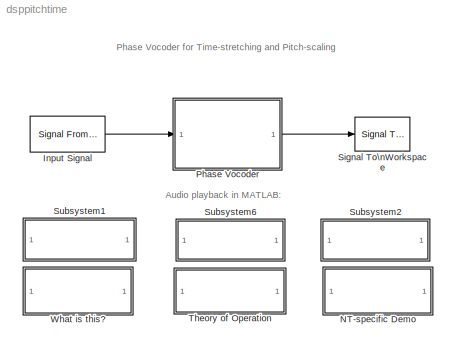
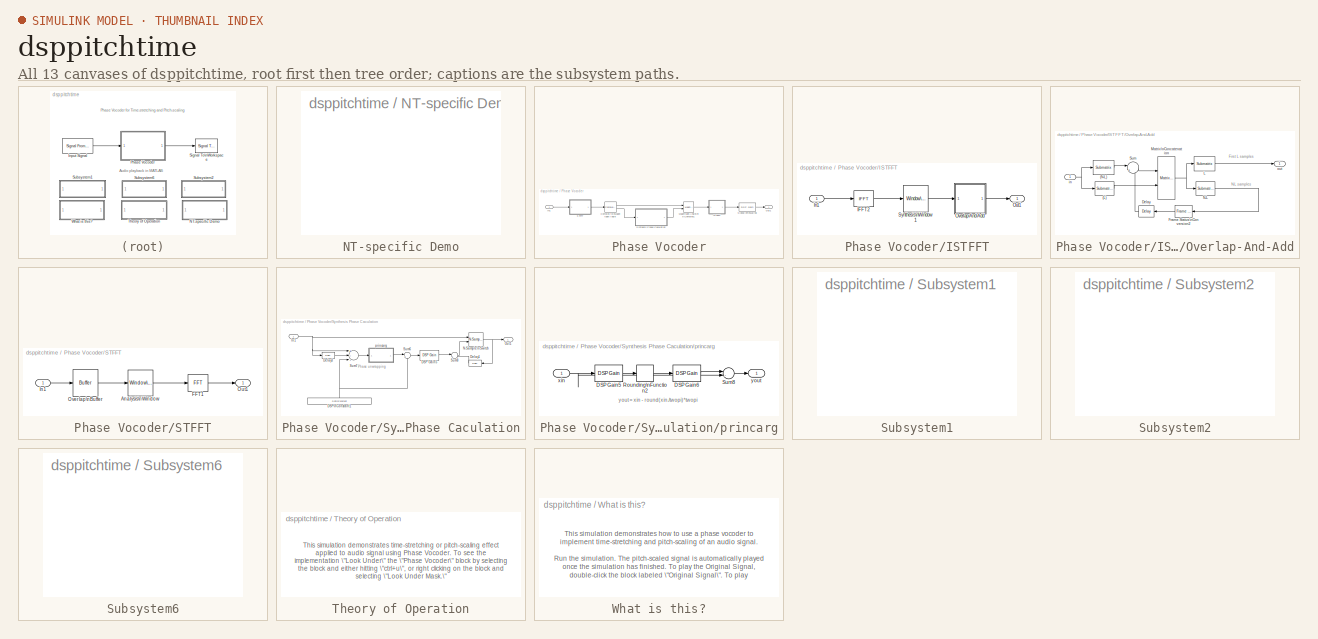
[diagram: thumbnail index - all 13 canvases of the model, root first then tree order]
MODEL dsppitchtime
KIND model
CONFIG PreLoadFcn = load clean_speech.mat;
BLOCK [Reference] Input Signal  REF=dspsrcs4/Signal From\nWorkspace
  OutputAfterFinalValue = Setting to zero
  Ports = [0, 1]
  ShowPortLabels = on
  SourceBlock = dspsrcs4/Signal From\nWorkspace
  SourceType = Signal From Workspace
  Ts = 1/8000
  X = Speech
  nsamps = 64
BLOCK [SubSystem] NT-specific Demo
  MaskDisplay = disp('PC/Windows\\nDemo')
  MaskIconFrame = on
  MaskIconOpaque = on
  MaskIconRotate = none
  MaskIconUnits = autoscale
  MaskType = NT-only Demo
  MinAlgLoopOccurrences = off
  OpenFcn = dsppitchtime_win32
  Ports = []
  PropExecContextAcrossSSBoundary = on
  RTWSystemCode = Auto
  TreatAsAtomicUnit = off
BLOCK [SubSystem] Phase Vocoder
  MaskCallbackString = ||
  MaskDescription = Algorithm for time-stretching and pitch-scaling of an audio signal. Time-stretching changes the speed of an audio signal without affecting its pitch. Pitch-scaling changes the pitch of an audio signal without affecting its speed. \n\nThe pitch-scaling and time-stretching factors are defined by the ratio of the Synthesis hop-size parameter to the Analysis hop-size parameter. \n\nThe Window size par...<+204ch>
  MaskDisplay = disp('Phase Vocoder')
  MaskEnableString = on,on,on
  MaskIconFrame = on
  MaskIconOpaque = on
  MaskIconRotate = none
  MaskIconUnits = autoscale
  MaskPromptString = Analysis hop-size (i.e., temporal shift of analysis window) (in samples):|Window size (in samples):|Synthesis hop-size (i.e., temporal shift of synthesis window) (in samples):
  MaskStyleString = edit,edit,edit
  MaskTabNameString = ,,
  MaskToolTipString = on,on,on
  MaskTunableValueString = off,off,off
  MaskType = Phase Vocoder
  MaskValueString = 64|256|90
  MaskVarAliasString = ,,
  MaskVariables = ana_hopSize=@1;winLen=@2;syn_hopSize=@3;
  MaskVisibilityString = on,on,on
  MinAlgLoopOccurrences = off
  Ports = [1, 1]
  PropExecContextAcrossSSBoundary = on
  RTWSystemCode = Auto
  TreatAsAtomicUnit = off
BLOCK [ComplexToMagnitudeAngle] Phase Vocoder/Complex to\nMagnitude-Angle
  Output = Magnitude and angle
  Ports = [1, 2]
BLOCK [SubSystem] Phase Vocoder/ISTFFT
  MaskDisplay = disp('Overlap\\nIST-FFT')
  MaskIconFrame = on
  MaskIconOpaque = on
  MaskIconRotate = none
  MaskIconUnits = autoscale
  MinAlgLoopOccurrences = off
  Ports = [1, 1]
  PropExecContextAcrossSSBoundary = on
  RTWSystemCode = Auto
  TreatAsAtomicUnit = off
BLOCK [Reference] Phase Vocoder/ISTFFT/IFFT2  REF=dspxfrm3/IFFT
  BitRevOrder = off
  CompMethod = Table lookup
  DialogController = dspDDGCreate
  DialogControllerArgs = DataTag0
  Ports = [1, 1]
  SkipNorm = on
  SourceBlock = dspxfrm3/IFFT
  SourceType = IFFT
  TableOpt = Speed
  accumFracLength = 30
  accumMode = Same as product output
  accumWordLength = 32
  additionalParams = off
  allowOverrides = on
  cs_in = on
  firstCoeffFracLength = 15
  firstCoeffMode = User-defined
  firstCoeffWordLength = 16
  mode = Complex
  outputFracLength = 15
  outputMode = Same as input
  outputWordLength = 16
  overflowMode = off
  prodOutputFracLength = 30
  prodOutputMode = Same as input
  prodOutputWordLength = 32
  roundingMode = Floor
BLOCK [Inport] Phase Vocoder/ISTFFT/In1
  IconDisplay = Port number
  LatchInput = off
BLOCK [Outport] Phase Vocoder/ISTFFT/Out1
  BusOutputAsStruct = off
  IconDisplay = Port number
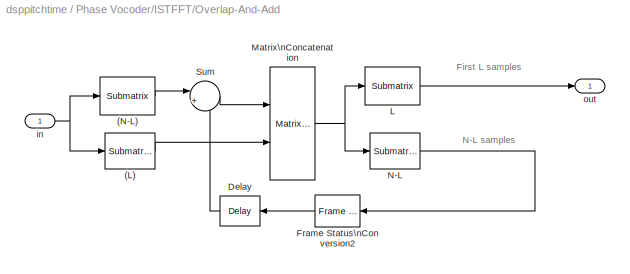
BLOCK [SubSystem] Phase Vocoder/ISTFFT/Overlap-And-Add
  MaskDescription = Performs overlap-and-add on the input signal. Disjoint frames of the input signal are overlapped with each other for a specified number of points and summed. \n
  MaskDisplay = disp('Overlap\\nAnd\\nAdd')
  MaskEnableString = on
  MaskIconFrame = on
  MaskIconOpaque = on
  MaskIconRotate = none
  MaskIconUnits = autoscale
  MaskPromptString = Number of new points in each frame
  MaskStyleString = edit
  MaskToolTipString = on
  MaskTunableValueString = on
  MaskType = Overlap-And-Add
  MaskValueString = syn_hopSize
  MaskVariables = L=@1;
  MaskVisibilityString = on
  MinAlgLoopOccurrences = off
  Ports = [1, 1]
  PropExecContextAcrossSSBoundary = on
  RTWSystemCode = Auto
  TreatAsAtomicUnit = off
BLOCK [Reference] Phase Vocoder/ISTFFT/Overlap-And-Add/(L)  REF=dspmtrx3/Submatrix
  ColEndIndex = 1
  ColEndMode = Last
  ColSpan = All columns
  ColStartIndex = 1
  ColStartMode = First
  Ports = [1, 1]
  RowEndIndex = 1
  RowEndMode = Last
  RowSpan = Range of rows
  RowStartIndex = L-1
  RowStartMode = Offset from last
  SourceBlock = dspmtrx3/Submatrix
  SourceType = Submatrix
BLOCK [Reference] Phase Vocoder/ISTFFT/Overlap-And-Add/(N-L)  REF=dspmtrx3/Submatrix
  ColEndIndex = 1
  ColEndMode = Last
  ColSpan = All columns
  ColStartIndex = 1
  ColStartMode = First
  Ports = [1, 1]
  RowEndIndex = L
  RowEndMode = Offset from last
  RowSpan = Range of rows
  RowStartIndex = 1
  RowStartMode = First
  SourceBlock = dspmtrx3/Submatrix
  SourceType = Submatrix
BLOCK [Reference] Phase Vocoder/ISTFFT/Overlap-And-Add/Delay  REF=dspsigops/Delay
  Ports = [1, 1]
  SourceBlock = dspsigops/Delay
  SourceType = Delay
  delay = 1
  dif_ic_for_ch = off
  dif_ic_for_dly = off
  dly_unit = Samples
  ic = 0
  ic_detail = off
  reset_popup = None
BLOCK [Reference] Phase Vocoder/ISTFFT/Overlap-And-Add/Frame Status\nConversion2  REF=dspsigattribs/Frame Status\nConversion
  Ports = [1, 1]
  ShowPortLabels = off
  SourceBlock = dspsigattribs/Frame Status\nConversion
  SourceType = Frame Status Conversion
  growRefPort = off
  outframe = Sample-based
BLOCK [Reference] Phase Vocoder/ISTFFT/Overlap-And-Add/L  REF=dspmtrx3/Submatrix
  ColEndIndex = 1
  ColEndMode = Last
  ColSpan = All columns
  ColStartIndex = 1
  ColStartMode = First
  Ports = [1, 1]
  RowEndIndex = L
  RowEndMode = Index
  RowSpan = Range of rows
  RowStartIndex = 1
  RowStartMode = First
  SourceBlock = dspmtrx3/Submatrix
  SourceType = Submatrix
BLOCK [Reference] Phase Vocoder/ISTFFT/Overlap-And-Add/Matrix\nConcatenation  REF=simulink/Math\nOperations/Matrix\nConcatenation
  Ports = [2, 1]
  SourceBlock = simulink/Math\nOperations/Matrix\nConcatenation
  SourceType = Matrix Concatenation
  catMethod = Vertical
  numInports = 2
BLOCK [Reference] Phase Vocoder/ISTFFT/Overlap-And-Add/N-L  REF=dspmtrx3/Submatrix
  ColEndIndex = 1
  ColEndMode = Last
  ColSpan = All columns
  ColStartIndex = 1
  ColStartMode = First
  Ports = [1, 1]
  RowEndIndex = 1
  RowEndMode = Last
  RowSpan = Range of rows
  RowStartIndex = L+1
  RowStartMode = Index
  SourceBlock = dspmtrx3/Submatrix
  SourceType = Submatrix
BLOCK [Sum] Phase Vocoder/ISTFFT/Overlap-And-Add/Sum
  IconShape = round
  Inputs = |++
  Ports = [2, 1]
BLOCK [Inport] Phase Vocoder/ISTFFT/Overlap-And-Add/in
  IconDisplay = Port number
  LatchInput = off
BLOCK [Outport] Phase Vocoder/ISTFFT/Overlap-And-Add/out
  BusOutputAsStruct = off
  IconDisplay = Port number
BLOCK [Reference] Phase Vocoder/ISTFFT/Synthesis\nWindow1  REF=dspsigops/Window\nFunction
  DialogController = dspDDGCreate
  DialogControllerArgs = DataTag1
  N = 64
  OptParams = off
  Ports = [1, 1]
  Rs = 50
  SourceBlock = dspsigops/Window\nFunction
  SourceType = Window Function
  UserParams = {1.0}
  UserWindow = hamming
  additionalParams = off
  allowOverrides = on
  beta = 10
  dataType = double
  firstCoeffFracLength = 15
  firstCoeffMode = Same word length as input
  firstCoeffWordLength = 16
  fracBitsMode = Best precision
  isSigned = on
  numFracBits = 15
  outputFracLength = 15
  outputMode = Same as input
  outputWordLength = 16
  overflowMode = off
  prodOutputFracLength = 15
  prodOutputMode = Inherit via internal rule
  prodOutputWordLength = 16
  roundingMode = Floor
  sampmode = Continuous
  samptime = 1
  udDataType = sfix(16)
  winmode = Apply window to input
  winsamp = Periodic
  wintype = Hanning
  wordLen = 16
BLOCK [Inport] Phase Vocoder/In1
  IconDisplay = Port number
  LatchInput = off
BLOCK [MagnitudeAngleToComplex] Phase Vocoder/Magnitude-Angle\nto Complex1
  Input = Magnitude and angle
  Ports = [2, 1]
BLOCK [Outport] Phase Vocoder/Out1
  BusOutputAsStruct = off
  IconDisplay = Port number
BLOCK [SubSystem] Phase Vocoder/STFFT
  MaskDisplay = disp('Overlap\\nST-FFT')
  MaskIconFrame = on
  MaskIconOpaque = on
  MaskIconRotate = none
  MaskIconUnits = autoscale
  MinAlgLoopOccurrences = off
  Ports = [1, 1]
  PropExecContextAcrossSSBoundary = on
  RTWSystemCode = Auto
  TreatAsAtomicUnit = off
BLOCK [Reference] Phase Vocoder/STFFT/Analysis\nWindow  REF=dspsigops/Window\nFunction
  DialogController = dspDDGCreate
  DialogControllerArgs = DataTag2
  N = 64
  OptParams = off
  Ports = [1, 1]
  Rs = 50
  SourceBlock = dspsigops/Window\nFunction
  SourceType = Window Function
  UserParams = {1.0}
  UserWindow = hamming
  additionalParams = off
  allowOverrides = on
  beta = 10
  dataType = double
  firstCoeffFracLength = 15
  firstCoeffMode = Same word length as input
  firstCoeffWordLength = 16
  fracBitsMode = Best precision
  isSigned = on
  numFracBits = 15
  outputFracLength = 15
  outputMode = Same as input
  outputWordLength = 16
  overflowMode = off
  prodOutputFracLength = 15
  prodOutputMode = Inherit via internal rule
  prodOutputWordLength = 16
  roundingMode = Floor
  sampmode = Continuous
  samptime = 1
  udDataType = sfix(16)
  winmode = Apply window to input
  winsamp = Periodic
  wintype = Hanning
  wordLen = 16
BLOCK [Reference] Phase Vocoder/STFFT/FFT1  REF=dspxfrm3/FFT
  BitRevOrder = off
  CompMethod = Table lookup
  DialogController = dspDDGCreate
  DialogControllerArgs = DataTag3
  Ports = [1, 1]
  SkipNorm = off
  SourceBlock = dspxfrm3/FFT
  SourceType = FFT
  TableOpt = Speed
  accumFracLength = 30
  accumMode = Same as product output
  accumWordLength = 32
  additionalParams = off
  allowOverrides = on
  firstCoeffFracLength = 15
  firstCoeffMode = User-defined
  firstCoeffWordLength = 16
  outputFracLength = 15
  outputMode = Same as input
  outputWordLength = 16
  overflowMode = off
  prodOutputFracLength = 30
  prodOutputMode = Same as input
  prodOutputWordLength = 32
  roundingMode = Floor
BLOCK [Inport] Phase Vocoder/STFFT/In1
  IconDisplay = Port number
  LatchInput = off
BLOCK [Outport] Phase Vocoder/STFFT/Out1
  BusOutputAsStruct = off
  IconDisplay = Port number
BLOCK [Reference] Phase Vocoder/STFFT/Overlap\nBuffer  REF=dspbuff3/Buffer
  N = winLen
  Ports = [1, 1]
  SourceBlock = dspbuff3/Buffer
  SourceType = Buffer
  V = winLen-ana_hopSize
  ic = 0
BLOCK [Reference] Phase Vocoder/Signal\nRescaling  REF=dspobslib/DSP Gain
  Ports = [1, 1]
  ShowPortLabels = on
  SourceBlock = dspobslib/DSP Gain
  SourceType = DSP Gain
  additionalParams = off
  allowOverrides = on
  gainFracLength = 15
  gainMode = Same as input
  gainValue = 1/(winLen*sum(hanning(winLen,'periodic').^2)/syn_hopSize)
  gainWordLength = 16
  overflowMode = off
  prodOutputFracLength = 30
  prodOutputMode = Same as input
  prodOutputWordLength = 32
  roundingMode = Floor
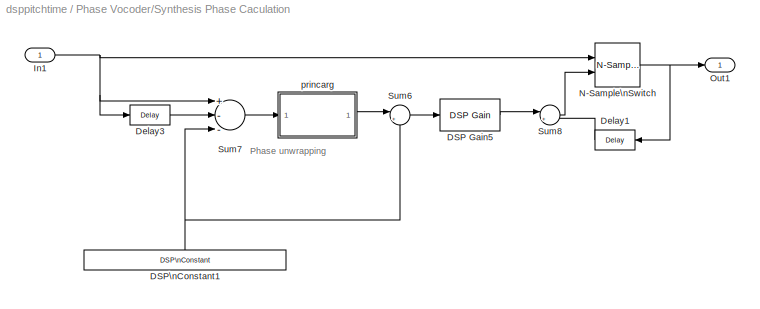
BLOCK [SubSystem] Phase Vocoder/Synthesis Phase Caculation
  MaskCallbackString = ||
  MaskDisplay = disp('Synthesis\\nPhase\\nCalculation')
  MaskEnableString = on,on,on
  MaskIconFrame = on
  MaskIconOpaque = on
  MaskIconRotate = none
  MaskIconUnits = autoscale
  MaskPromptString = Analysis hop size:|Synthesis hop size:|Window size:
  MaskStyleString = edit,edit,edit
  MaskTabNameString = ,,
  MaskToolTipString = on,on,on
  MaskTunableValueString = off,off,off
  MaskValueString = ana_hopSize|syn_hopSize|winLen
  MaskVarAliasString = ,,
  MaskVariables = ana_hopSize=@1;syn_hopSize=@2;winLen=@3;
  MaskVisibilityString = on,on,on
  MinAlgLoopOccurrences = off
  Ports = [1, 1]
  PropExecContextAcrossSSBoundary = on
  RTWSystemCode = Auto
  TreatAsAtomicUnit = off
BLOCK [Reference] Phase Vocoder/Synthesis Phase Caculation/DSP Gain5  REF=dspobslib/DSP Gain
  Ports = [1, 1]
  ShowPortLabels = on
  SourceBlock = dspobslib/DSP Gain
  SourceType = DSP Gain
  additionalParams = off
  allowOverrides = on
  gainFracLength = 15
  gainMode = Same as input
  gainValue = syn_hopSize/ana_hopSize
  gainWordLength = 16
  overflowMode = off
  prodOutputFracLength = 30
  prodOutputMode = Same as input
  prodOutputWordLength = 32
  roundingMode = Floor
BLOCK [Reference] Phase Vocoder/Synthesis Phase Caculation/DSP\nConstant1  REF=dspsrcs4/DSP\nConstant
  FramebasedOutput = -inf
  InterpretAs1D = -inf
  Ports = [0, 1]
  SampleMode = Discrete
  ShowPortLabels = on
  SourceBlock = dspsrcs4/DSP\nConstant
  SourceType = DSP Constant
  Ts = -inf
  Value = 2*pi*ana_hopSize*[0:winLen-1]'/winLen
  additionalParams = off
  allowOverrides = on
  continuousOutput = Sample-based
  dataType = Inherit from 'Constant value'
  discreteOutput = Sample-based
  fracBitsMode = Best precision
  framePeriod = 2
  isSigned = on
  numFracBits = 15
  sampTime = 64/8000
  udDataType = sfix(16)
  wordLen = 16
BLOCK [Reference] Phase Vocoder/Synthesis Phase Caculation/Delay1  REF=dspsigops/Delay
  Ports = [1, 1]
  SourceBlock = dspsigops/Delay
  SourceType = Delay
  delay = 1
  dif_ic_for_ch = off
  dif_ic_for_dly = off
  dly_unit = Frames
  ic = 0
  ic_detail = on
  reset_popup = None
BLOCK [Reference] Phase Vocoder/Synthesis Phase Caculation/Delay3  REF=dspsigops/Delay
  Ports = [1, 1]
  SourceBlock = dspsigops/Delay
  SourceType = Delay
  delay = 1
  dif_ic_for_ch = off
  dif_ic_for_dly = off
  dly_unit = Frames
  ic = 0
  ic_detail = on
  reset_popup = None
BLOCK [Inport] Phase Vocoder/Synthesis Phase Caculation/In1
  IconDisplay = Port number
  LatchInput = off
BLOCK [Reference] Phase Vocoder/Synthesis Phase Caculation/N-Sample\nSwitch  REF=dspswit3/N-Sample\nSwitch
  N = 1
  Ports = [2, 1]
  ShowPortLabels = on
  SourceBlock = dspswit3/N-Sample\nSwitch
  SourceType = N-Sample Switch
  TriggerType = Rising edge
  Ts = -1
  reset = off
BLOCK [Outport] Phase Vocoder/Synthesis Phase Caculation/Out1
  BusOutputAsStruct = off
  IconDisplay = Port number
BLOCK [Sum] Phase Vocoder/Synthesis Phase Caculation/Sum6
  IconShape = round
  InputSameDT = off
  Inputs = |++
  OutDataTypeMode = Inherit via internal rule
  Ports = [2, 1]
BLOCK [Sum] Phase Vocoder/Synthesis Phase Caculation/Sum7
  InputSameDT = off
  Inputs = +--
  OutDataTypeMode = Inherit via internal rule
  Ports = [3, 1]
BLOCK [Sum] Phase Vocoder/Synthesis Phase Caculation/Sum8
  IconShape = round
  InputSameDT = off
  Inputs = |++
  OutDataTypeMode = Inherit via internal rule
  Ports = [2, 1]
BLOCK [SubSystem] Phase Vocoder/Synthesis Phase Caculation/princarg
  MaskDisplay = disp('Principal\\nArgument');
  MaskIconFrame = on
  MaskIconOpaque = on
  MaskIconRotate = none
  MaskIconUnits = autoscale
  MinAlgLoopOccurrences = off
  Ports = [1, 1]
  PropExecContextAcrossSSBoundary = on
  RTWSystemCode = Auto
  TreatAsAtomicUnit = off
BLOCK [Reference] Phase Vocoder/Synthesis Phase Caculation/princarg/DSP Gain5  REF=dspobslib/DSP Gain
  Ports = [1, 1]
  ShowPortLabels = on
  SourceBlock = dspobslib/DSP Gain
  SourceType = DSP Gain
  additionalParams = off
  allowOverrides = on
  gainFracLength = 15
  gainMode = Same as input
  gainValue = 1/(2*pi)
  gainWordLength = 16
  overflowMode = off
  prodOutputFracLength = 30
  prodOutputMode = Same as input
  prodOutputWordLength = 32
  roundingMode = Floor
BLOCK [Reference] Phase Vocoder/Synthesis Phase Caculation/princarg/DSP Gain6  REF=dspobslib/DSP Gain
  Ports = [1, 1]
  ShowPortLabels = on
  SourceBlock = dspobslib/DSP Gain
  SourceType = DSP Gain
  additionalParams = off
  allowOverrides = on
  gainFracLength = 15
  gainMode = Same as input
  gainValue = 2*pi
  gainWordLength = 16
  overflowMode = off
  prodOutputFracLength = 30
  prodOutputMode = Same as input
  prodOutputWordLength = 32
  roundingMode = Floor
BLOCK [Rounding] Phase Vocoder/Synthesis Phase Caculation/princarg/Rounding\nFunction2
  Operator = round
BLOCK [Sum] Phase Vocoder/Synthesis Phase Caculation/princarg/Sum8
  IconShape = round
  InputSameDT = off
  Inputs = |-+
  OutDataTypeMode = Inherit via internal rule
  Ports = [2, 1]
BLOCK [Inport] Phase Vocoder/Synthesis Phase Caculation/princarg/xin
  IconDisplay = Port number
  LatchInput = off
BLOCK [Outport] Phase Vocoder/Synthesis Phase Caculation/princarg/yout
  BusOutputAsStruct = off
  IconDisplay = Port number
BLOCK [Reference] Signal To\nWorkspace  REF=dspsnks4/Signal To\nWorkspace
  Decimation = 1
  FixptAsFi = off
  FrameMode = Concatenate frames (2-D array)
  MaxDataPoints = inf
  Ports = [1]
  ShowPortLabels = on
  SourceBlock = dspsnks4/Signal To\nWorkspace
  SourceType = Signal To Workspace
  VariableName = y_pnt
BLOCK [SubSystem] Subsystem1
  MaskDisplay = disp('Original\\nSignal')
  MaskIconFrame = on
  MaskIconOpaque = on
  MaskIconRotate = none
  MaskIconUnits = autoscale
  MinAlgLoopOccurrences = off
  OpenFcn = blk = 'dsppitchtime/Input Signal';                                                                                                                                                  \nTs = get_param(blk,'Ts');                                                                                                                                                           \nFs = 1/str2num(Ts);                 ...<+692ch>
  Ports = []
  PropExecContextAcrossSSBoundary = on
  RTWSystemCode = Auto
  TreatAsAtomicUnit = off
BLOCK [SubSystem] Subsystem2
  MaskDisplay = disp('Time-stretched\\nSignal')
  MaskIconFrame = on
  MaskIconOpaque = on
  MaskIconRotate = none
  MaskIconUnits = autoscale
  MinAlgLoopOccurrences = off
  OpenFcn = blk = 'dsppitchtime/Input Signal';                                                                                                                                   \nTs = get_param(blk,'Ts');                                                                                                                                            \nFs = 1/str2num(Ts);                                               ...<+433ch>
  Ports = []
  PropExecContextAcrossSSBoundary = on
  RTWSystemCode = Auto
  TreatAsAtomicUnit = off
BLOCK [SubSystem] Subsystem6
  MaskDisplay = disp('Pitch-scaled\\nSignal')
  MaskIconFrame = on
  MaskIconOpaque = on
  MaskIconRotate = none
  MaskIconUnits = autoscale
  MinAlgLoopOccurrences = off
  OpenFcn = blk = 'dsppitchtime/Input Signal';                                                                          \nTs = get_param(blk,'Ts');                                                                                   \nFs = 1/str2num(Ts);                                                                                         \nblk2 = 'dsppitchtime/Phase Vocoder';                                  ...<+703ch>
  Ports = []
  PropExecContextAcrossSSBoundary = on
  RTWSystemCode = Auto
  StopFcn = blk = 'dsppitchtime/Input Signal';                                                                          \nTs = get_param(blk,'Ts');                                                                                   \nFs = 1/str2num(Ts);                                                                                         \nblk2 = 'dsppitchtime/Phase Vocoder';                                  ...<+703ch>
  TreatAsAtomicUnit = off
BLOCK [SubSystem] Theory of Operation
  MaskDisplay = disp('Theory of\\nOperation')
  MaskIconFrame = on
  MaskIconOpaque = on
  MaskIconRotate = none
  MaskIconUnits = autoscale
  MaskType = Theory of Operation
  MinAlgLoopOccurrences = off
  Ports = []
  PropExecContextAcrossSSBoundary = on
  RTWSystemCode = Auto
  TreatAsAtomicUnit = off
BLOCK [SubSystem] What is this?
  MaskDisplay = disp('What is this?')
  MaskIconFrame = on
  MaskIconOpaque = on
  MaskIconRotate = none
  MaskIconUnits = autoscale
  MaskType = Frame-Based Simulation Info
  MinAlgLoopOccurrences = off
  Ports = []
  PropExecContextAcrossSSBoundary = on
  RTWSystemCode = Auto
  TreatAsAtomicUnit = off
ANNOTATION (root): Phase Vocoder for Time-stretching and Pitch-scaling
ANNOTATION (root): Audio playback in MATLAB:
ANNOTATION Phase Vocoder/ISTFFT/Overlap-And-Add: First L samples
ANNOTATION Phase Vocoder/ISTFFT/Overlap-And-Add: N-L samples
ANNOTATION Phase Vocoder/Synthesis Phase Caculation: Phase unwrapping
ANNOTATION Phase Vocoder/Synthesis Phase Caculation/princarg: yout = xin - round(xin./twopi)*twopi
ANNOTATION Theory of Operation: This simulation demonstrates time-stretching or pitch-scaling effect \napplied to audio signal using Phase Vocoder. To see the \nimplementation \"Look Under\" the \"Phase Vocoder\" block by selecting \nthe block and either hitting \"ctrl+u\", or right clicking on the block and \nselecting \"Look Under Mask.\"\n\nFor further information you may also refer to the following paper:\nA. D. Gotzen, N. B...<+208ch>
ANNOTATION What is this?: This simulation demonstrates how to use a phase vocoder to \nimplement time-stretching and pitch-scaling of an audio signal.\n\nRun the simulation. The pitch-scaled signal is automatically played \nonce the simulation has finished. To play the Original Signal, \ndouble-click the block labeled \"Original Signal\". To play \nthe Pitch-scaled Signal or the Time-stretched Signal, double-click \nthe bl...<+736ch>
LINE Input Signal:1 -> Phase Vocoder:1
LINE Phase Vocoder/Complex to\nMagnitude-Angle:1 -> Phase Vocoder/Magnitude-Angle\nto Complex1:1
LINE Phase Vocoder/Complex to\nMagnitude-Angle:2 -> Phase Vocoder/Synthesis Phase Caculation:1
LINE Phase Vocoder/ISTFFT/IFFT2:1 -> Phase Vocoder/ISTFFT/Synthesis\nWindow1:1
LINE Phase Vocoder/ISTFFT/In1:1 -> Phase Vocoder/ISTFFT/IFFT2:1
LINE Phase Vocoder/ISTFFT/Overlap-And-Add/(L):1 -> Phase Vocoder/ISTFFT/Overlap-And-Add/Matrix\nConcatenation:2
LINE Phase Vocoder/ISTFFT/Overlap-And-Add/(N-L):1 -> Phase Vocoder/ISTFFT/Overlap-And-Add/Sum:1
LINE Phase Vocoder/ISTFFT/Overlap-And-Add/Delay:1 -> Phase Vocoder/ISTFFT/Overlap-And-Add/Sum:2
LINE Phase Vocoder/ISTFFT/Overlap-And-Add/Frame Status\nConversion2:1 -> Phase Vocoder/ISTFFT/Overlap-And-Add/Delay:1
LINE Phase Vocoder/ISTFFT/Overlap-And-Add/L:1 -> Phase Vocoder/ISTFFT/Overlap-And-Add/out:1
NET Phase Vocoder/ISTFFT/Overlap-And-Add/Matrix\nConcatenation:1 -> Phase Vocoder/ISTFFT/Overlap-And-Add/L:1, Phase Vocoder/ISTFFT/Overlap-And-Add/N-L:1
LINE Phase Vocoder/ISTFFT/Overlap-And-Add/N-L:1 -> Phase Vocoder/ISTFFT/Overlap-And-Add/Frame Status\nConversion2:1
LINE Phase Vocoder/ISTFFT/Overlap-And-Add/Sum:1 -> Phase Vocoder/ISTFFT/Overlap-And-Add/Matrix\nConcatenation:1
NET Phase Vocoder/ISTFFT/Overlap-And-Add/in:1 -> Phase Vocoder/ISTFFT/Overlap-And-Add/(L):1, Phase Vocoder/ISTFFT/Overlap-And-Add/(N-L):1
LINE Phase Vocoder/ISTFFT/Overlap-And-Add:1 -> Phase Vocoder/ISTFFT/Out1:1
LINE Phase Vocoder/ISTFFT/Synthesis\nWindow1:1 -> Phase Vocoder/ISTFFT/Overlap-And-Add:1
LINE Phase Vocoder/ISTFFT:1 -> Phase Vocoder/Signal\nRescaling:1
LINE Phase Vocoder/In1:1 -> Phase Vocoder/STFFT:1
LINE Phase Vocoder/Magnitude-Angle\nto Complex1:1 -> Phase Vocoder/ISTFFT:1
LINE Phase Vocoder/STFFT/Analysis\nWindow:1 -> Phase Vocoder/STFFT/FFT1:1
LINE Phase Vocoder/STFFT/FFT1:1 -> Phase Vocoder/STFFT/Out1:1
LINE Phase Vocoder/STFFT/In1:1 -> Phase Vocoder/STFFT/Overlap\nBuffer:1
LINE Phase Vocoder/STFFT/Overlap\nBuffer:1 -> Phase Vocoder/STFFT/Analysis\nWindow:1
LINE Phase Vocoder/STFFT:1 -> Phase Vocoder/Complex to\nMagnitude-Angle:1
LINE Phase Vocoder/Signal\nRescaling:1 -> Phase Vocoder/Out1:1
LINE Phase Vocoder/Synthesis Phase Caculation/DSP Gain5:1 -> Phase Vocoder/Synthesis Phase Caculation/Sum8:1
NET Phase Vocoder/Synthesis Phase Caculation/DSP\nConstant1:1 -> Phase Vocoder/Synthesis Phase Caculation/Sum6:2, Phase Vocoder/Synthesis Phase Caculation/Sum7:3
LINE Phase Vocoder/Synthesis Phase Caculation/Delay1:1 -> Phase Vocoder/Synthesis Phase Caculation/Sum8:2
LINE Phase Vocoder/Synthesis Phase Caculation/Delay3:1 -> Phase Vocoder/Synthesis Phase Caculation/Sum7:2
NET Phase Vocoder/Synthesis Phase Caculation/In1:1 -> Phase Vocoder/Synthesis Phase Caculation/Delay3:1, Phase Vocoder/Synthesis Phase Caculation/N-Sample\nSwitch:1, Phase Vocoder/Synthesis Phase Caculation/Sum7:1
NET Phase Vocoder/Synthesis Phase Caculation/N-Sample\nSwitch:1 -> Phase Vocoder/Synthesis Phase Caculation/Delay1:1, Phase Vocoder/Synthesis Phase Caculation/Out1:1
LINE Phase Vocoder/Synthesis Phase Caculation/Sum6:1 -> Phase Vocoder/Synthesis Phase Caculation/DSP Gain5:1
LINE Phase Vocoder/Synthesis Phase Caculation/Sum7:1 -> Phase Vocoder/Synthesis Phase Caculation/princarg:1
LINE Phase Vocoder/Synthesis Phase Caculation/Sum8:1 -> Phase Vocoder/Synthesis Phase Caculation/N-Sample\nSwitch:2
LINE Phase Vocoder/Synthesis Phase Caculation/princarg/DSP Gain5:1 -> Phase Vocoder/Synthesis Phase Caculation/princarg/Rounding\nFunction2:1
LINE Phase Vocoder/Synthesis Phase Caculation/princarg/DSP Gain6:1 -> Phase Vocoder/Synthesis Phase Caculation/princarg/Sum8:1
LINE Phase Vocoder/Synthesis Phase Caculation/princarg/Rounding\nFunction2:1 -> Phase Vocoder/Synthesis Phase Caculation/princarg/DSP Gain6:1
LINE Phase Vocoder/Synthesis Phase Caculation/princarg/Sum8:1 -> Phase Vocoder/Synthesis Phase Caculation/princarg/yout:1
NET Phase Vocoder/Synthesis Phase Caculation/princarg/xin:1 -> Phase Vocoder/Synthesis Phase Caculation/princarg/DSP Gain5:1, Phase Vocoder/Synthesis Phase Caculation/princarg/Sum8:2
LINE Phase Vocoder/Synthesis Phase Caculation/princarg:1 -> Phase Vocoder/Synthesis Phase Caculation/Sum6:1
LINE Phase Vocoder/Synthesis Phase Caculation:1 -> Phase Vocoder/Magnitude-Angle\nto Complex1:2
LINE Phase Vocoder:1 -> Signal To\nWorkspace:1
note: NET lines group one-source signal fan-out (src -> all destinations, sorted); 1:1 wires keep LINE
